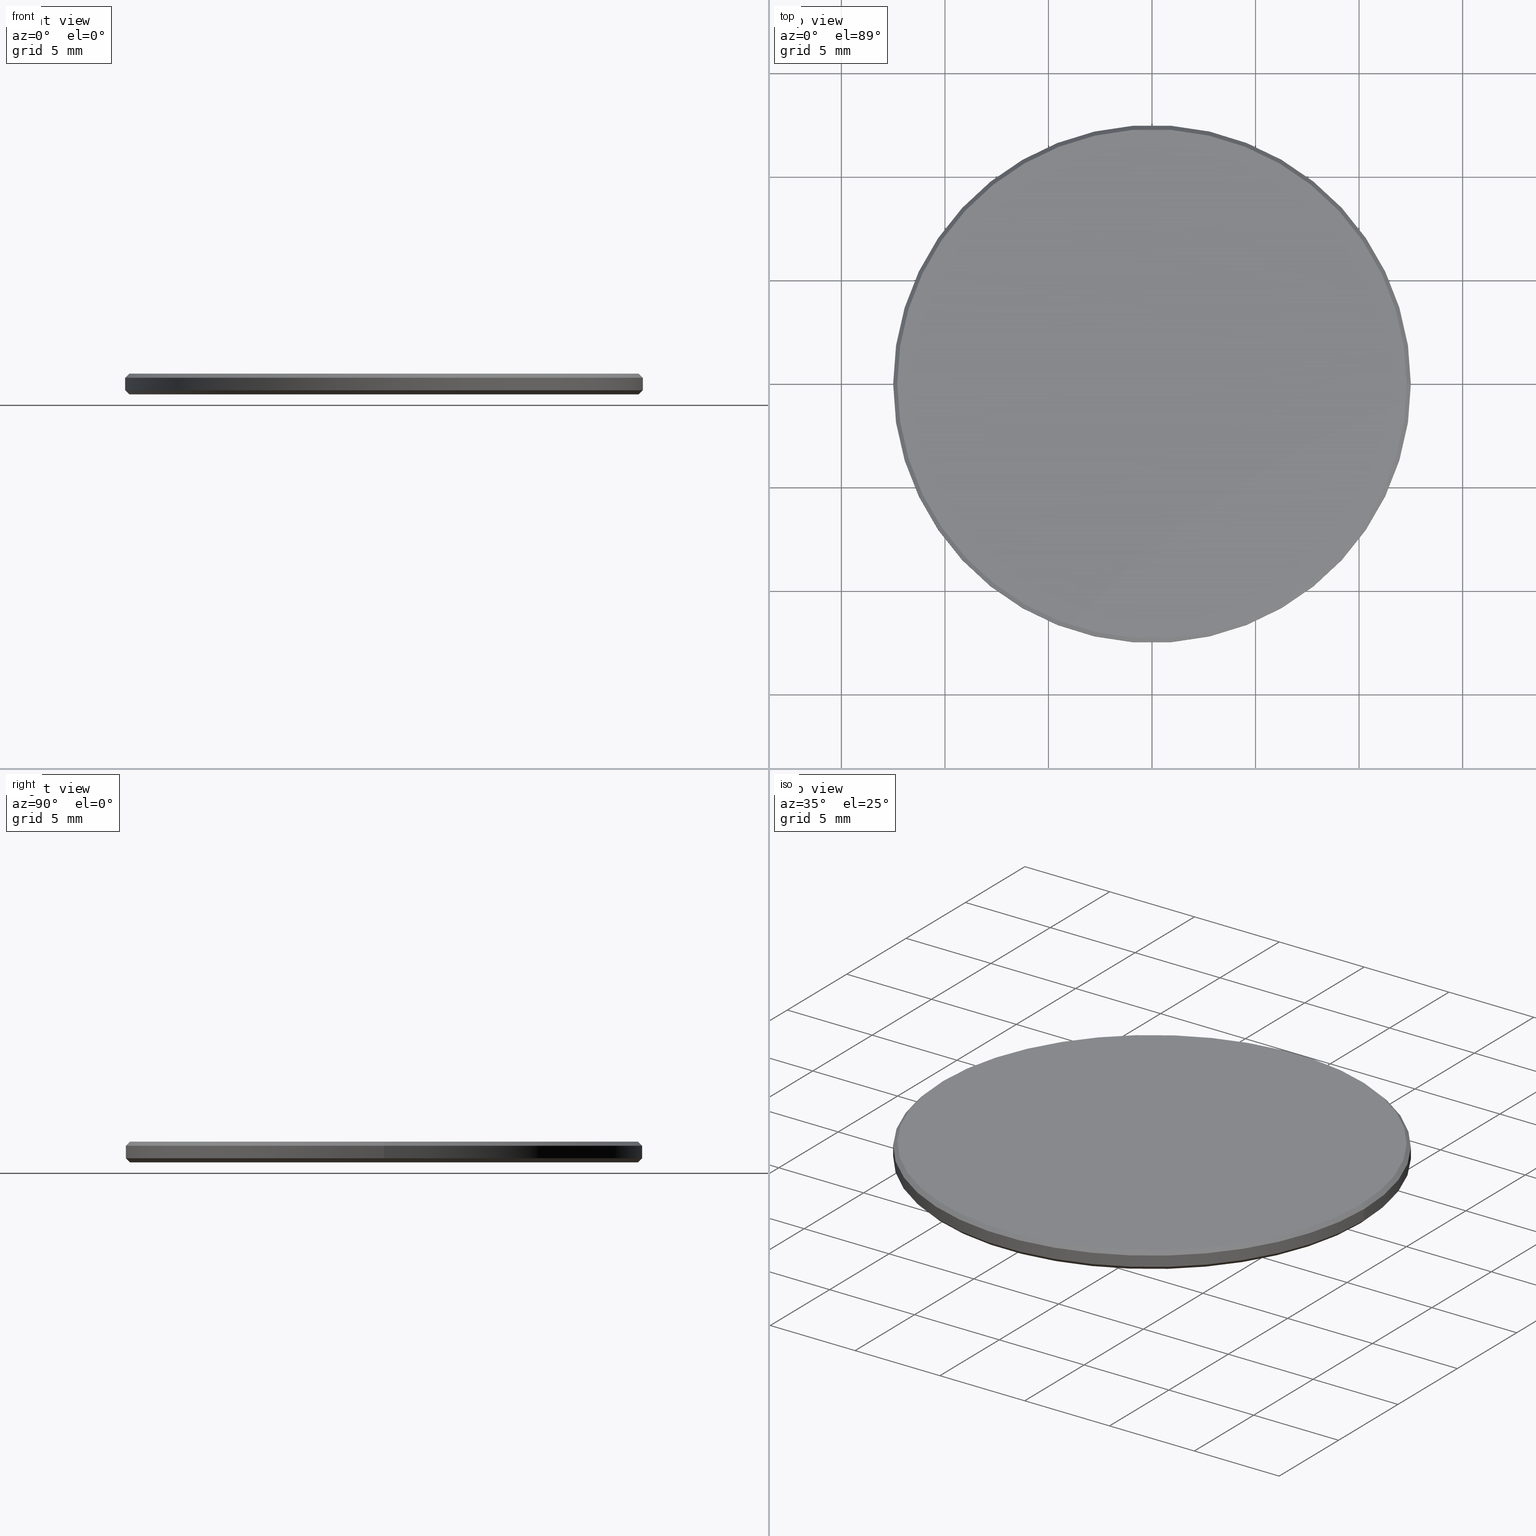
[diagram: canonical four-view strip — front | top / right | iso, engineering-drawing reading convention]
A machine part, canonical four-view strip (front | top / right | iso — engineering-drawing reading convention). The complete STEP part file that produces these views, byte-faithful:
ISO-10303-21;
HEADER;
FILE_DESCRIPTION (( 'STEP AP214' ),
    '1' );
FILE_NAME ('GNIF-2000-4000-D25.STEP',
    '2024-07-19T14:21:21',
    ( '' ),
    ( '' ),
    'SwSTEP 2.0',
    'SolidWorks 2022',
    '' );
FILE_SCHEMA (( 'AUTOMOTIVE_DESIGN' ));
ENDSEC;

DATA;
#1 = EDGE_CURVE ( 'NONE', #113, #114, #56, .T. ) ;
#2 = VERTEX_POINT ( 'NONE', #87 ) ;
#3 = LINE ( 'NONE', #24, #41 ) ;
#4 = EDGE_LOOP ( 'NONE', ( #100, #193 ) ) ;
#5 = CARTESIAN_POINT ( 'NONE',  ( -12.50000000000000000, 0.000000000000000000, 0.1999999999999987899 ) ) ;
#6 =( GEOMETRIC_REPRESENTATION_CONTEXT ( 3 ) GLOBAL_UNCERTAINTY_ASSIGNED_CONTEXT ( ( #179 ) ) GLOBAL_UNIT_ASSIGNED_CONTEXT ( ( #169, #224, #207 ) ) REPRESENTATION_CONTEXT ( 'NONE', 'WORKASPACE' ) );
#7 = ORIENTED_EDGE ( 'NONE', *, *, #175, .T. ) ;
#8 = DIRECTION ( 'NONE',  ( -0.7071067811865474617, 8.659560562354932858E-17, 0.7071067811865474617 ) ) ;
#9 = CARTESIAN_POINT ( 'NONE',  ( 0.000000000000000000, 0.000000000000000000, 0.1999999999999987899 ) ) ;
#10 = AXIS2_PLACEMENT_3D ( 'NONE', #16, #123, #68 ) ;
#11 = DIRECTION ( 'NONE',  ( -0.000000000000000000, -0.000000000000000000, 1.000000000000000000 ) ) ;
#12 = VECTOR ( 'NONE', #52, 1000.000000000000000 ) ;
#13 = DIRECTION ( 'NONE',  ( 1.000000000000000000, 0.000000000000000000, 0.000000000000000000 ) ) ;
#14 = ADVANCED_FACE ( 'NONE', ( #160 ), #218, .T. ) ;
#15 = DIRECTION ( 'NONE',  ( -0.000000000000000000, -0.000000000000000000, -1.000000000000000000 ) ) ;
#16 = CARTESIAN_POINT ( 'NONE',  ( 0.000000000000000000, 0.000000000000000000, 0.000000000000000000 ) ) ;
#17 = LINE ( 'NONE', #90, #12 ) ;
#18 = EDGE_CURVE ( 'NONE', #30, #205, #126, .T. ) ;
#19 = PRODUCT_RELATED_PRODUCT_CATEGORY ( 'part', '', ( #73 ) ) ;
#20 = AXIS2_PLACEMENT_3D ( 'NONE', #176, #83, #157 ) ;
#21 = AXIS2_PLACEMENT_3D ( 'NONE', #194, #190, #174 ) ;
#22 = EDGE_LOOP ( 'NONE', ( #155, #166, #223, #208 ) ) ;
#23 = SURFACE_STYLE_FILL_AREA ( #154 ) ;
#24 = CARTESIAN_POINT ( 'NONE',  ( -12.50000000000000000, 1.530808498934191521E-15, 0.1999999999999987899 ) ) ;
#25 = ORIENTED_EDGE ( 'NONE', *, *, #104, .F. ) ;
#26 = CARTESIAN_POINT ( 'NONE',  ( -12.29999999999999893, 0.000000000000000000, 1.000000000000000000 ) ) ;
#27 = VERTEX_POINT ( 'NONE', #216 ) ;
#28 = AXIS2_PLACEMENT_3D ( 'NONE', #50, #238, #142 ) ;
#29 = DIRECTION ( 'NONE',  ( -0.000000000000000000, -0.000000000000000000, -1.000000000000000000 ) ) ;
#30 = VERTEX_POINT ( 'NONE', #67 ) ;
#31 = CARTESIAN_POINT ( 'NONE',  ( 0.000000000000000000, 0.000000000000000000, 1.000000000000000000 ) ) ;
#32 = DIRECTION ( 'NONE',  ( 0.000000000000000000, 0.000000000000000000, -1.000000000000000000 ) ) ;
#33 = SURFACE_STYLE_FILL_AREA ( #121 ) ;
#34 = ADVANCED_FACE ( 'NONE', ( #84 ), #237, .T. ) ;
#35 = DIRECTION ( 'NONE',  ( -1.000000000000000000, 0.000000000000000000, 0.000000000000000000 ) ) ;
#36 = DIRECTION ( 'NONE',  ( -1.000000000000000000, 0.000000000000000000, 0.000000000000000000 ) ) ;
#37 = ADVANCED_FACE ( 'NONE', ( #198 ), #40, .T. ) ;
#38 = CIRCLE ( 'NONE', #53, 12.50000000000000000 ) ;
#39 = PRODUCT_DEFINITION_FORMATION_WITH_SPECIFIED_SOURCE ( '�κ�', '', #73, .NOT_KNOWN. ) ;
#40 = CONICAL_SURFACE ( 'NONE', #221, 12.50000000000000000, 0.7853981633974482790 ) ;
#41 = VECTOR ( 'NONE', #8, 1000.000000000000114 ) ;
#42 = ORIENTED_EDGE ( 'NONE', *, *, #187, .F. ) ;
#43 = EDGE_LOOP ( 'NONE', ( #152, #225, #135, #133 ) ) ;
#44 = ADVANCED_FACE ( 'NONE', ( #178 ), #105, .T. ) ;
#45 = FACE_OUTER_BOUND ( 'NONE', #186, .T. ) ;
#46 =( NAMED_UNIT ( * ) PLANE_ANGLE_UNIT ( ) SI_UNIT ( $, .RADIAN. ) );
#47 = CARTESIAN_POINT ( 'NONE',  ( 0.000000000000000000, 0.000000000000000000, 1.000000000000000000 ) ) ;
#48 = AXIS2_PLACEMENT_3D ( 'NONE', #118, #29, #78 ) ;
#49 =( NAMED_UNIT ( * ) SI_UNIT ( $, .STERADIAN. ) SOLID_ANGLE_UNIT ( ) );
#50 = CARTESIAN_POINT ( 'NONE',  ( 0.000000000000000000, 0.000000000000000000, 1.000000000000000000 ) ) ;
#51 = MANIFOLD_SOLID_BREP ( '����1', #147 ) ;
#52 = DIRECTION ( 'NONE',  ( -0.000000000000000000, -0.000000000000000000, -1.000000000000000000 ) ) ;
#53 = AXIS2_PLACEMENT_3D ( 'NONE', #200, #227, #134 ) ;
#54 = EDGE_CURVE ( 'NONE', #114, #209, #66, .T. ) ;
#55 =( NAMED_UNIT ( * ) PLANE_ANGLE_UNIT ( ) SI_UNIT ( $, .RADIAN. ) );
#56 = LINE ( 'NONE', #65, #183 ) ;
#57 = FACE_OUTER_BOUND ( 'NONE', #128, .T. ) ;
#58 = ADVANCED_FACE ( 'NONE', ( #45 ), #120, .F. ) ;
#59 = VECTOR ( 'NONE', #77, 1000.000000000000000 ) ;
#60 = DIRECTION ( 'NONE',  ( 1.000000000000000000, 0.000000000000000000, 0.000000000000000000 ) ) ;
#61 = ORIENTED_EDGE ( 'NONE', *, *, #222, .T. ) ;
#62 = PRESENTATION_STYLE_ASSIGNMENT (( #170 ) ) ;
#63 = ORIENTED_EDGE ( 'NONE', *, *, #1, .T. ) ;
#64 = DIRECTION ( 'NONE',  ( 0.000000000000000000, 0.000000000000000000, 1.000000000000000000 ) ) ;
#65 = CARTESIAN_POINT ( 'NONE',  ( 12.50000000000000000, 0.000000000000000000, 0.1999999999999987899 ) ) ;
#66 = CIRCLE ( 'NONE', #92, 12.50000000000000000 ) ;
#67 = CARTESIAN_POINT ( 'NONE',  ( 12.29999999999999893, 1.518562030942717967E-15, 1.000000000000000000 ) ) ;
#68 = DIRECTION ( 'NONE',  ( 1.000000000000000000, 0.000000000000000000, 0.000000000000000000 ) ) ;
#69 = AXIS2_PLACEMENT_3D ( 'NONE', #136, #177, #35 ) ;
#70 = LINE ( 'NONE', #199, #234 ) ;
#71 = DIRECTION ( 'NONE',  ( 0.000000000000000000, 0.000000000000000000, -1.000000000000000000 ) ) ;
#72 = EDGE_CURVE ( 'NONE', #30, #2, #70, .T. ) ;
#73 = PRODUCT ( 'GNIF-2000-4000-D25', 'GNIF-2000-4000-D25', '', ( #137 ) ) ;
#74 =( GEOMETRIC_REPRESENTATION_CONTEXT ( 3 ) GLOBAL_UNCERTAINTY_ASSIGNED_CONTEXT ( ( #217 ) ) GLOBAL_UNIT_ASSIGNED_CONTEXT ( ( #213, #46, #49 ) ) REPRESENTATION_CONTEXT ( 'NONE', 'WORKASPACE' ) );
#75 = EDGE_LOOP ( 'NONE', ( #129, #94, #153, #25 ) ) ;
#76 = EDGE_LOOP ( 'NONE', ( #231, #168, #63, #97 ) ) ;
#77 = DIRECTION ( 'NONE',  ( -0.000000000000000000, -0.000000000000000000, -1.000000000000000000 ) ) ;
#78 = DIRECTION ( 'NONE',  ( 1.000000000000000000, 0.000000000000000000, 0.000000000000000000 ) ) ;
#79 = AXIS2_PLACEMENT_3D ( 'NONE', #240, #71, #124 ) ;
#80 = ORIENTED_EDGE ( 'NONE', *, *, #18, .F. ) ;
#81 = CARTESIAN_POINT ( 'NONE',  ( -12.29999999999999893, 0.000000000000000000, 1.000000000000000000 ) ) ;
#82 =( GEOMETRIC_REPRESENTATION_CONTEXT ( 3 ) GLOBAL_UNCERTAINTY_ASSIGNED_CONTEXT ( ( #173 ) ) GLOBAL_UNIT_ASSIGNED_CONTEXT ( ( #192, #55, #203 ) ) REPRESENTATION_CONTEXT ( 'NONE', 'WORKASPACE' ) );
#83 = DIRECTION ( 'NONE',  ( -0.000000000000000000, -0.000000000000000000, 1.000000000000000000 ) ) ;
#84 = FACE_OUTER_BOUND ( 'NONE', #43, .T. ) ;
#85 = CIRCLE ( 'NONE', #112, 12.30000000000000249 ) ;
#86 = PRODUCT_DEFINITION_CONTEXT ( 'detailed design', #144, 'design' ) ;
#87 = CARTESIAN_POINT ( 'NONE',  ( 12.50000000000000000, 1.530808498934191521E-15, 0.8000000000000029310 ) ) ;
#88 = PRESENTATION_STYLE_ASSIGNMENT (( #181 ) ) ;
#89 = EDGE_CURVE ( 'NONE', #209, #114, #125, .T. ) ;
#90 = CARTESIAN_POINT ( 'NONE',  ( -12.50000000000000000, 0.000000000000000000, 1.000000000000000000 ) ) ;
#91 = AXIS2_PLACEMENT_3D ( 'NONE', #31, #32, #197 ) ;
#92 = AXIS2_PLACEMENT_3D ( 'NONE', #9, #103, #13 ) ;
#93 = ADVANCED_FACE ( 'NONE', ( #214 ), #148, .T. ) ;
#94 = ORIENTED_EDGE ( 'NONE', *, *, #236, .F. ) ;
#95 = LINE ( 'NONE', #101, #59 ) ;
#96 = LINE ( 'NONE', #81, #172 ) ;
#97 = ORIENTED_EDGE ( 'NONE', *, *, #89, .F. ) ;
#98 = PRODUCT_DEFINITION ( 'δ֪', '', #39, #86 ) ;
#99 = MECHANICAL_DESIGN_GEOMETRIC_PRESENTATION_REPRESENTATION (  '', ( #116 ), #74 ) ;
#100 = ORIENTED_EDGE ( 'NONE', *, *, #236, .T. ) ;
#101 = CARTESIAN_POINT ( 'NONE',  ( 12.50000000000000000, 1.530808498934191521E-15, 1.000000000000000000 ) ) ;
#102 = ORIENTED_EDGE ( 'NONE', *, *, #187, .T. ) ;
#103 = DIRECTION ( 'NONE',  ( -0.000000000000000000, -0.000000000000000000, 1.000000000000000000 ) ) ;
#104 = EDGE_CURVE ( 'NONE', #2, #27, #107, .T. ) ;
#105 = PLANE ( 'NONE',  #167 ) ;
#106 = AXIS2_PLACEMENT_3D ( 'NONE', #140, #239, #119 ) ;
#107 = CIRCLE ( 'NONE', #122, 12.50000000000000000 ) ;
#108 = CARTESIAN_POINT ( 'NONE',  ( 0.000000000000000000, 0.000000000000000000, 1.000000000000000000 ) ) ;
#109 = SURFACE_SIDE_STYLE ('',( #33 ) ) ;
#110 = SHAPE_DEFINITION_REPRESENTATION ( #188, #138 ) ;
#111 = DIRECTION ( 'NONE',  ( 1.000000000000000000, 0.000000000000000000, 0.000000000000000000 ) ) ;
#112 = AXIS2_PLACEMENT_3D ( 'NONE', #232, #226, #60 ) ;
#113 = VERTEX_POINT ( 'NONE', #146 ) ;
#114 = VERTEX_POINT ( 'NONE', #219 ) ;
#115 = APPLICATION_PROTOCOL_DEFINITION ( 'draft international standard', 'automotive_design', 1998, #159 ) ;
#116 = STYLED_ITEM ( 'NONE', ( #88 ), #51 ) ;
#117 = ORIENTED_EDGE ( 'NONE', *, *, #1, .F. ) ;
#118 = CARTESIAN_POINT ( 'NONE',  ( 0.000000000000000000, 0.000000000000000000, 0.000000000000000000 ) ) ;
#119 = DIRECTION ( 'NONE',  ( 1.000000000000000000, 0.000000000000000000, -0.000000000000000000 ) ) ;
#120 = PLANE ( 'NONE',  #106 ) ;
#121 = FILL_AREA_STYLE ('',( #212 ) ) ;
#122 = AXIS2_PLACEMENT_3D ( 'NONE', #233, #182, #111 ) ;
#123 = DIRECTION ( 'NONE',  ( 0.000000000000000000, 0.000000000000000000, 1.000000000000000000 ) ) ;
#124 = DIRECTION ( 'NONE',  ( -1.000000000000000000, 0.000000000000000000, 0.000000000000000000 ) ) ;
#125 = CIRCLE ( 'NONE', #20, 12.50000000000000000 ) ;
#126 = CIRCLE ( 'NONE', #28, 12.29999999999999893 ) ;
#127 = EDGE_CURVE ( 'NONE', #27, #209, #17, .T. ) ;
#128 = EDGE_LOOP ( 'NONE', ( #42, #7, #189, #117 ) ) ;
#129 = ORIENTED_EDGE ( 'NONE', *, *, #72, .F. ) ;
#130 = DIRECTION ( 'NONE',  ( -0.7071067811865566766, 0.000000000000000000, -0.7071067811865383579 ) ) ;
#131 = STYLED_ITEM ( 'NONE', ( #62 ), #138 ) ;
#132 = DIRECTION ( 'NONE',  ( 1.000000000000000000, 0.000000000000000000, 0.000000000000000000 ) ) ;
#133 = ORIENTED_EDGE ( 'NONE', *, *, #89, .T. ) ;
#134 = DIRECTION ( 'NONE',  ( 1.000000000000000000, 0.000000000000000000, 0.000000000000000000 ) ) ;
#135 = ORIENTED_EDGE ( 'NONE', *, *, #127, .T. ) ;
#136 = CARTESIAN_POINT ( 'NONE',  ( 0.000000000000000000, 0.000000000000000000, 1.000000000000000000 ) ) ;
#137 = PRODUCT_CONTEXT ( 'NONE', #159, 'mechanical' ) ;
#138 = ADVANCED_BREP_SHAPE_REPRESENTATION ( 'GNIF-2000-4000-D25', ( #51, #10 ), #6 ) ;
#139 = DIRECTION ( 'NONE',  ( 1.000000000000000000, 0.000000000000000000, 0.000000000000000000 ) ) ;
#140 = CARTESIAN_POINT ( 'NONE',  ( 0.000000000000000000, 0.000000000000000000, 0.000000000000000000 ) ) ;
#141 = ADVANCED_FACE ( 'NONE', ( #162 ), #215, .T. ) ;
#142 = DIRECTION ( 'NONE',  ( 1.000000000000000000, 0.000000000000000000, 0.000000000000000000 ) ) ;
#143 = PRESENTATION_LAYER_ASSIGNMENT (  '', '', ( #131 ) ) ;
#144 = APPLICATION_CONTEXT ( 'automotive_design' ) ;
#145 = DIRECTION ( 'NONE',  ( 1.000000000000000000, 0.000000000000000000, -0.000000000000000000 ) ) ;
#146 = CARTESIAN_POINT ( 'NONE',  ( 12.30000000000000249, 0.000000000000000000, 0.000000000000000000 ) ) ;
#147 = CLOSED_SHELL ( 'NONE', ( #163, #141, #14, #34, #44, #58, #93, #37 ) ) ;
#148 = CONICAL_SURFACE ( 'NONE', #91, 12.29999999999999893, 0.7853981633974612686 ) ;
#149 = EDGE_CURVE ( 'NONE', #27, #2, #38, .T. ) ;
#150 = VERTEX_POINT ( 'NONE', #210 ) ;
#151 = FILL_AREA_STYLE_COLOUR ( '', #220 ) ;
#152 = ORIENTED_EDGE ( 'NONE', *, *, #204, .F. ) ;
#153 = ORIENTED_EDGE ( 'NONE', *, *, #184, .T. ) ;
#154 = FILL_AREA_STYLE ('',( #151 ) ) ;
#155 = ORIENTED_EDGE ( 'NONE', *, *, #149, .T. ) ;
#156 = CARTESIAN_POINT ( 'NONE',  ( 0.000000000000000000, 0.000000000000000000, 1.000000000000000000 ) ) ;
#157 = DIRECTION ( 'NONE',  ( 1.000000000000000000, 0.000000000000000000, 0.000000000000000000 ) ) ;
#158 = CARTESIAN_POINT ( 'NONE',  ( 0.000000000000000000, 0.000000000000000000, 0.1999999999999987899 ) ) ;
#159 = APPLICATION_CONTEXT ( 'automotive_design' ) ;
#160 = FACE_OUTER_BOUND ( 'NONE', #22, .T. ) ;
#161 = APPLICATION_PROTOCOL_DEFINITION ( 'draft international standard', 'automotive_design', 1998, #144 ) ;
#162 = FACE_OUTER_BOUND ( 'NONE', #191, .T. ) ;
#163 = ADVANCED_FACE ( 'NONE', ( #57 ), #228, .T. ) ;
#164 = ORIENTED_EDGE ( 'NONE', *, *, #149, .F. ) ;
#165 = MECHANICAL_DESIGN_GEOMETRIC_PRESENTATION_REPRESENTATION (  '', ( #131 ), #82 ) ;
#166 = ORIENTED_EDGE ( 'NONE', *, *, #204, .T. ) ;
#167 = AXIS2_PLACEMENT_3D ( 'NONE', #47, #235, #145 ) ;
#168 = ORIENTED_EDGE ( 'NONE', *, *, #222, .F. ) ;
#169 =( LENGTH_UNIT ( ) NAMED_UNIT ( * ) SI_UNIT ( .MILLI., .METRE. ) );
#170 = SURFACE_STYLE_USAGE ( .BOTH. , #230 ) ;
#171 = ORIENTED_EDGE ( 'NONE', *, *, #184, .F. ) ;
#172 = VECTOR ( 'NONE', #130, 1000.000000000000000 ) ;
#173 = UNCERTAINTY_MEASURE_WITH_UNIT (LENGTH_MEASURE( 1.000000000000000082E-05 ), #192, 'distance_accuracy_value', 'NONE');
#174 = DIRECTION ( 'NONE',  ( 1.000000000000000000, 0.000000000000000000, 0.000000000000000000 ) ) ;
#175 = EDGE_CURVE ( 'NONE', #150, #209, #3, .T. ) ;
#176 = CARTESIAN_POINT ( 'NONE',  ( 0.000000000000000000, 0.000000000000000000, 0.1999999999999987899 ) ) ;
#177 = DIRECTION ( 'NONE',  ( -0.000000000000000000, -0.000000000000000000, -1.000000000000000000 ) ) ;
#178 = FACE_OUTER_BOUND ( 'NONE', #4, .T. ) ;
#179 = UNCERTAINTY_MEASURE_WITH_UNIT (LENGTH_MEASURE( 1.000000000000000082E-05 ), #169, 'distance_accuracy_value', 'NONE');
#180 = DIRECTION ( 'NONE',  ( 0.7071067811865474617, 0.000000000000000000, 0.7071067811865474617 ) ) ;
#181 = SURFACE_STYLE_USAGE ( .BOTH. , #109 ) ;
#182 = DIRECTION ( 'NONE',  ( 0.000000000000000000, 0.000000000000000000, -1.000000000000000000 ) ) ;
#183 = VECTOR ( 'NONE', #180, 1000.000000000000114 ) ;
#184 = EDGE_CURVE ( 'NONE', #205, #27, #96, .T. ) ;
#185 = CIRCLE ( 'NONE', #196, 12.29999999999999893 ) ;
#186 = EDGE_LOOP ( 'NONE', ( #61, #102 ) ) ;
#187 = EDGE_CURVE ( 'NONE', #150, #113, #202, .T. ) ;
#188 = PRODUCT_DEFINITION_SHAPE ( 'NONE', 'NONE',  #98 ) ;
#189 = ORIENTED_EDGE ( 'NONE', *, *, #54, .F. ) ;
#190 = DIRECTION ( 'NONE',  ( -0.000000000000000000, -0.000000000000000000, 1.000000000000000000 ) ) ;
#191 = EDGE_LOOP ( 'NONE', ( #80, #229, #164, #171 ) ) ;
#192 =( LENGTH_UNIT ( ) NAMED_UNIT ( * ) SI_UNIT ( .MILLI., .METRE. ) );
#193 = ORIENTED_EDGE ( 'NONE', *, *, #18, .T. ) ;
#194 = CARTESIAN_POINT ( 'NONE',  ( 0.000000000000000000, 0.000000000000000000, 0.1999999999999987899 ) ) ;
#195 = DIRECTION ( 'NONE',  ( 0.7071067811865566766, 8.659560562355045024E-17, -0.7071067811865383579 ) ) ;
#196 = AXIS2_PLACEMENT_3D ( 'NONE', #156, #64, #132 ) ;
#197 = DIRECTION ( 'NONE',  ( -1.000000000000000000, 0.000000000000000000, 0.000000000000000000 ) ) ;
#198 = FACE_OUTER_BOUND ( 'NONE', #76, .T. ) ;
#199 = CARTESIAN_POINT ( 'NONE',  ( 12.29999999999999893, 1.506315562951244216E-15, 1.000000000000000000 ) ) ;
#200 = CARTESIAN_POINT ( 'NONE',  ( 0.000000000000000000, 0.000000000000000000, 0.8000000000000029310 ) ) ;
#201 = PRESENTATION_LAYER_ASSIGNMENT (  '', '', ( #116 ) ) ;
#202 = CIRCLE ( 'NONE', #48, 12.30000000000000249 ) ;
#203 =( NAMED_UNIT ( * ) SI_UNIT ( $, .STERADIAN. ) SOLID_ANGLE_UNIT ( ) );
#204 = EDGE_CURVE ( 'NONE', #2, #114, #95, .T. ) ;
#205 = VERTEX_POINT ( 'NONE', #26 ) ;
#206 = COLOUR_RGB ( '',1.000000000000000000, 1.000000000000000000, 1.000000000000000000 ) ;
#207 =( NAMED_UNIT ( * ) SI_UNIT ( $, .STERADIAN. ) SOLID_ANGLE_UNIT ( ) );
#208 = ORIENTED_EDGE ( 'NONE', *, *, #127, .F. ) ;
#209 = VERTEX_POINT ( 'NONE', #5 ) ;
#210 = CARTESIAN_POINT ( 'NONE',  ( -12.30000000000000249, 1.518562030942718164E-15, 0.000000000000000000 ) ) ;
#211 = AXIS2_PLACEMENT_3D ( 'NONE', #108, #15, #36 ) ;
#212 = FILL_AREA_STYLE_COLOUR ( '', #206 ) ;
#213 =( LENGTH_UNIT ( ) NAMED_UNIT ( * ) SI_UNIT ( .MILLI., .METRE. ) );
#214 = FACE_OUTER_BOUND ( 'NONE', #75, .T. ) ;
#215 = CONICAL_SURFACE ( 'NONE', #79, 12.29999999999999893, 0.7853981633974612686 ) ;
#216 = CARTESIAN_POINT ( 'NONE',  ( -12.50000000000000000, 0.000000000000000000, 0.8000000000000029310 ) ) ;
#217 = UNCERTAINTY_MEASURE_WITH_UNIT (LENGTH_MEASURE( 1.000000000000000082E-05 ), #213, 'distance_accuracy_value', 'NONE');
#218 = CYLINDRICAL_SURFACE ( 'NONE', #211, 12.50000000000000000 ) ;
#219 = CARTESIAN_POINT ( 'NONE',  ( 12.50000000000000000, 1.530808498934191521E-15, 0.1999999999999987899 ) ) ;
#220 = COLOUR_RGB ( '',1.000000000000000000, 1.000000000000000000, 1.000000000000000000 ) ;
#221 = AXIS2_PLACEMENT_3D ( 'NONE', #158, #11, #139 ) ;
#222 = EDGE_CURVE ( 'NONE', #113, #150, #85, .T. ) ;
#223 = ORIENTED_EDGE ( 'NONE', *, *, #54, .T. ) ;
#224 =( NAMED_UNIT ( * ) PLANE_ANGLE_UNIT ( ) SI_UNIT ( $, .RADIAN. ) );
#225 = ORIENTED_EDGE ( 'NONE', *, *, #104, .T. ) ;
#226 = DIRECTION ( 'NONE',  ( -0.000000000000000000, -0.000000000000000000, -1.000000000000000000 ) ) ;
#227 = DIRECTION ( 'NONE',  ( 0.000000000000000000, 0.000000000000000000, -1.000000000000000000 ) ) ;
#228 = CONICAL_SURFACE ( 'NONE', #21, 12.50000000000000000, 0.7853981633974482790 ) ;
#229 = ORIENTED_EDGE ( 'NONE', *, *, #72, .T. ) ;
#230 = SURFACE_SIDE_STYLE ('',( #23 ) ) ;
#231 = ORIENTED_EDGE ( 'NONE', *, *, #175, .F. ) ;
#232 = CARTESIAN_POINT ( 'NONE',  ( 0.000000000000000000, 0.000000000000000000, 0.000000000000000000 ) ) ;
#233 = CARTESIAN_POINT ( 'NONE',  ( 0.000000000000000000, 0.000000000000000000, 0.8000000000000029310 ) ) ;
#234 = VECTOR ( 'NONE', #195, 1000.000000000000000 ) ;
#235 = DIRECTION ( 'NONE',  ( 0.000000000000000000, 0.000000000000000000, 1.000000000000000000 ) ) ;
#236 = EDGE_CURVE ( 'NONE', #205, #30, #185, .T. ) ;
#237 = CYLINDRICAL_SURFACE ( 'NONE', #69, 12.50000000000000000 ) ;
#238 = DIRECTION ( 'NONE',  ( 0.000000000000000000, 0.000000000000000000, 1.000000000000000000 ) ) ;
#239 = DIRECTION ( 'NONE',  ( 0.000000000000000000, 0.000000000000000000, 1.000000000000000000 ) ) ;
#240 = CARTESIAN_POINT ( 'NONE',  ( 0.000000000000000000, 0.000000000000000000, 1.000000000000000000 ) ) ;
ENDSEC;
END-ISO-10303-21;
